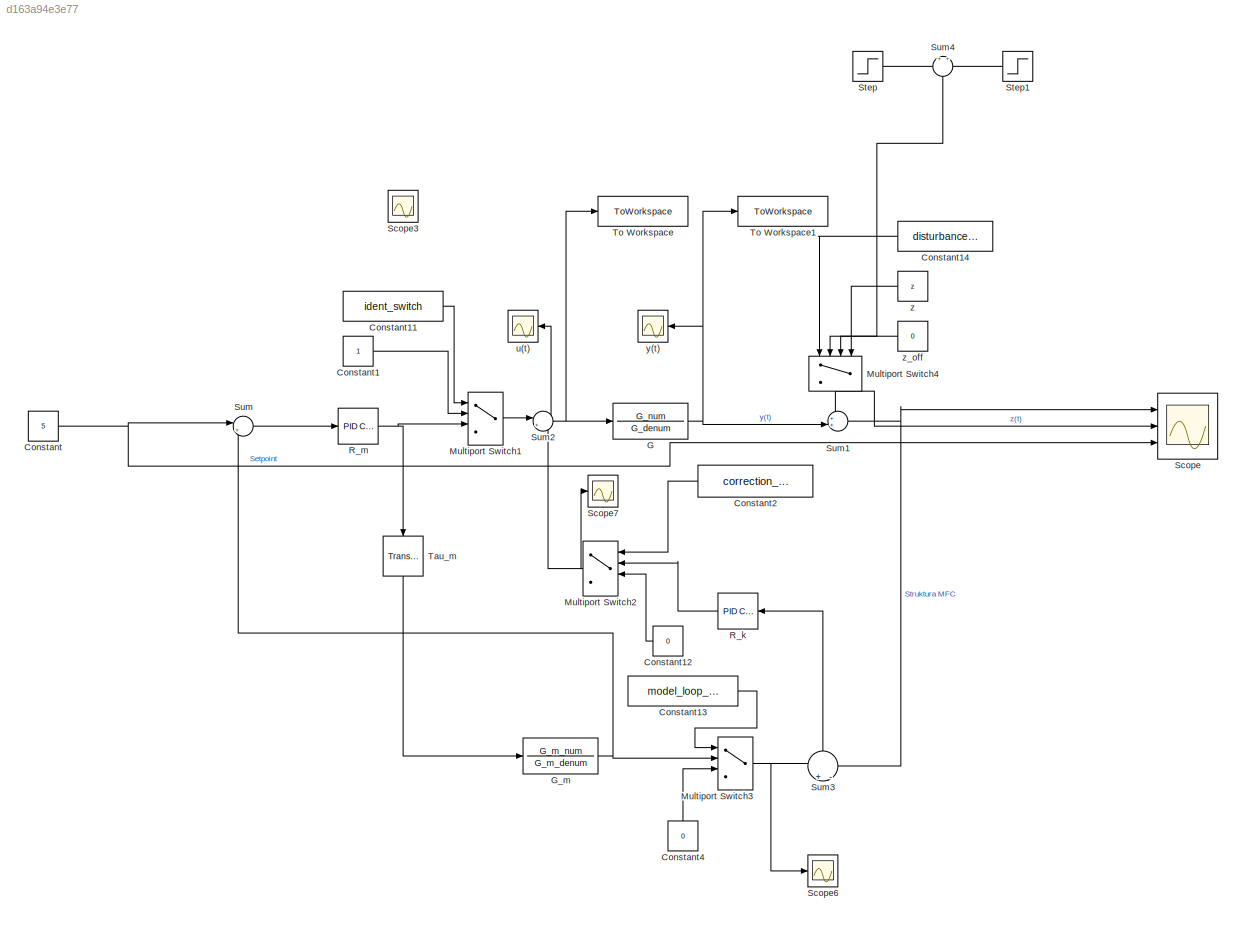
MODEL slx_d163a94e3e77
KIND model
CONFIG AbsTol = auto
CONFIG EnableMultiTasking = off
CONFIG FixedStep = 0.01
CONFIG MaxStep = auto
CONFIG MinStep = auto
CONFIG RelTol = 1e-3
CONFIG SampleTimeConstraint = Unconstrained
CONFIG SolverName = FixedStepAuto
CONFIG StartTime = 0.0
CONFIG StopTime = stop_time
BLOCK [Constant] Constant
  SampleTime = -1
  Value = 5
BLOCK [Constant] Constant1
BLOCK [Constant] Constant11
  SampleTime = -1
  Value = ident_switch
  VectorParams1D = off
BLOCK [Constant] Constant12
  NameLocation = top
  SampleTime = -1
  Value = 0
BLOCK [Constant] Constant13
  Value = model_loop_switch
BLOCK [Constant] Constant14
  NameLocation = top
  SampleTime = -1
  Value = disturbance_switch
BLOCK [Constant] Constant2
  NameLocation = top
  SampleTime = -1
  Value = correction_loop_switch
BLOCK [Constant] Constant4
  NameLocation = right
  SampleTime = -1
  Value = 0
BLOCK [TransferFcn] G
  Denominator = G_denum
  Numerator = G_num
BLOCK [TransferFcn] G_m
  Denominator = G_m_denum
  Numerator = G_m_num
BLOCK [MultiPortSwitch] Multiport Switch1
  InputSameDT = off
  Ports = [4, 1]
  SaturateOnIntegerOverflow = off
BLOCK [MultiPortSwitch] Multiport Switch2
  InputSameDT = off
  NameLocation = top
  Ports = [4, 1]
  SaturateOnIntegerOverflow = off
BLOCK [MultiPortSwitch] Multiport Switch3
  InputSameDT = off
  Ports = [4, 1]
  SaturateOnIntegerOverflow = off
BLOCK [MultiPortSwitch] Multiport Switch4
  InputSameDT = off
  NameLocation = left
  Ports = [4, 1]
  SaturateOnIntegerOverflow = off
BLOCK [Reference] R_k  REF=slpidlib/PID Controller
  NameLocation = top
  Ports = [1, 1]
  SourceBlock = slpidlib/PID Controller
  SourceType = PID 1dof
BLOCK [Reference] R_m  REF=slpidlib/PID Controller
  Ports = [1, 1]
  SourceBlock = slpidlib/PID Controller
  SourceType = PID 1dof
BLOCK [Scope] Scope
  Floating = off
  NumInputPorts = 3
  Ports = [3]
  ScopeSpecificationString = Simulink.scopes.TimeScopeBlockCfg('CurrentConfiguration', extmgr.ConfigurationSet(extmgr.Configuration('Core','General UI',true),extmgr.Configuration('Core','Source UI',true),extmgr.Configuration('Sources','WiredSimulink',true),extmgr.Configuration('Visuals','Time Domain',true,'SerializedDisplays',{struct('MinYLimReal','-0.75','MaxYLimReal','6.75','YLabelReal','','MinYLimMag','0.00000','MaxYLimMag...<+1374ch>
BLOCK [Scope] Scope3
  Floating = off
  IOType = viewer
  NumInputPorts = 1
  Ports = []
  ScopeSpecificationString = Simulink.scopes.TimeScopeBlockCfg('CurrentConfiguration', extmgr.ConfigurationSet(extmgr.Configuration('Core','General UI',true),extmgr.Configuration('Core','Source UI',true),extmgr.Configuration('Sources','WiredSimulink',true,'DataLoggingVariableName','ScopeData2'),extmgr.Configuration('Visuals','Time Domain',true,'SerializedDisplays',{struct('MinYLimReal','-5.00000','MaxYLimReal','45.00000','YLa...<+1363ch>
BLOCK [Scope] Scope6
  Floating = off
  NumInputPorts = 1
  Ports = [1]
  ScopeSpecificationString = Simulink.scopes.TimeScopeBlockCfg('CurrentConfiguration', extmgr.ConfigurationSet(extmgr.Configuration('Core','General UI',true),extmgr.Configuration('Core','Source UI',true),extmgr.Configuration('Sources','WiredSimulink',true,'DataLoggingVariableName','ScopeData2'),extmgr.Configuration('Visuals','Time Domain',true,'SerializedDisplays',{struct('MinYLimReal','-1.00000','MaxYLimReal','1.00000','YLab...<+1376ch>
BLOCK [Scope] Scope7
  Floating = off
  NumInputPorts = 1
  Ports = [1]
  ScopeSpecificationString = Simulink.scopes.TimeScopeBlockCfg('CurrentConfiguration', extmgr.ConfigurationSet(extmgr.Configuration('Core','General UI',true),extmgr.Configuration('Core','Source UI',true),extmgr.Configuration('Sources','WiredSimulink',true,'DataLoggingVariableName','ScopeData3'),extmgr.Configuration('Visuals','Time Domain',true,'SerializedDisplays',{struct('MinYLimReal','-23.73627','MaxYLimReal','1.92032','YLa...<+1424ch>
BLOCK [Step] Step
  SampleTime = 0
  Time = 200
BLOCK [Step] Step1
  After = -1
  NameLocation = top
  SampleTime = 0
  Time = 400
BLOCK [Sum] Sum
  Inputs = |+-
  Ports = [2, 1]
BLOCK [Sum] Sum1
  Inputs = ++|
  Ports = [2, 1]
BLOCK [Sum] Sum2
  Inputs = |++
  Ports = [2, 1]
BLOCK [Sum] Sum3
  Inputs = +|-
  NameLocation = right
  Ports = [2, 1]
BLOCK [Sum] Sum4
  Inputs = +|+
  NameLocation = left
  Ports = [2, 1]
BLOCK [TransportDelay] Tau_m
  DelayTime = tau_m
  NameLocation = left
  Ports = [1, 1]
BLOCK [ToWorkspace] To Workspace
  FixptAsFi = on
  MaxDataPoints = inf
  Ports = [1]
  SampleTime = -1
  Save2DSignal = 2-D array (concatenate along first dimension)
  SaveFormat = Timeseries
  VariableName = u
BLOCK [ToWorkspace] To Workspace1
  FixptAsFi = on
  MaxDataPoints = inf
  Ports = [1]
  SampleTime = -1
  Save2DSignal = 2-D array (concatenate along first dimension)
  SaveFormat = Timeseries
  VariableName = y
BLOCK [Scope] u(t)
  Floating = off
  NameLocation = top
  NumInputPorts = 1
  Ports = [1]
  ScopeSpecificationString = Simulink.scopes.TimeScopeBlockCfg('CurrentConfiguration', extmgr.ConfigurationSet(extmgr.Configuration('Core','General UI',true),extmgr.Configuration('Core','Source UI',true),extmgr.Configuration('Sources','WiredSimulink',true,'DataLoggingVariableName','u','DataLoggingSaveFormat','StructureWithTime'),extmgr.Configuration('Visuals','Time Domain',true,'SerializedDisplays',{struct('MinYLimReal','-19....<+1475ch>
BLOCK [Scope] y(t)
  Floating = off
  NameLocation = top
  NumInputPorts = 1
  Ports = [1]
  ScopeSpecificationString = Simulink.scopes.TimeScopeBlockCfg('CurrentConfiguration', extmgr.ConfigurationSet(extmgr.Configuration('Core','General UI',true),extmgr.Configuration('Core','Source UI',true),extmgr.Configuration('Sources','WiredSimulink',true,'DataLoggingVariableName','y','DataLoggingSaveFormat','StructureWithTime'),extmgr.Configuration('Visuals','Time Domain',true,'SerializedDisplays',{struct('MinYLimReal','-0.5...<+1471ch>
BLOCK [Constant] z
  NameLocation = top
  SampleTime = -1
  Value = z
BLOCK [Constant] z_off
  NameLocation = top
  SampleTime = -1
  Value = 0
LINE Constant11:1 -> Multiport Switch1:1
LINE Constant12:1 -> Multiport Switch2:3
LINE Constant13:1 -> Multiport Switch3:1
LINE Constant14:1 -> Multiport Switch4:1
LINE Constant1:1 -> Multiport Switch1:2
LINE Constant2:1 -> Multiport Switch2:1
LINE Constant4:1 -> Multiport Switch3:3
NET Constant:1 -> Scope:3, Sum:1
NET G:1 -> Sum1:2, To Workspace1:1, y(t):1
NET G_m:1 -> Multiport Switch3:2, Sum:2
LINE Multiport Switch1:1 -> Sum2:1
NET Multiport Switch2:1 -> Scope7:1, Sum2:2
NET Multiport Switch3:1 -> Scope6:1, Sum3:1
NET Multiport Switch4:1 -> Scope:2, Sum1:1
LINE R_k:1 -> Multiport Switch2:2
NET R_m:1 -> Multiport Switch1:3, Tau_m:1
LINE Step1:1 -> Sum4:2
LINE Step:1 -> Sum4:1
NET Sum1:1 -> Scope:1, Sum3:2
NET Sum2:1 -> G:1, To Workspace:1, u(t):1
LINE Sum3:1 -> R_k:1
LINE Sum4:1 -> Multiport Switch4:2
LINE Sum:1 -> R_m:1
LINE Tau_m:1 -> G_m:1
LINE z:1 -> Multiport Switch4:4
LINE z_off:1 -> Multiport Switch4:3
note: NET lines group one-source signal fan-out (src -> all destinations, sorted); 1:1 wires keep LINE
